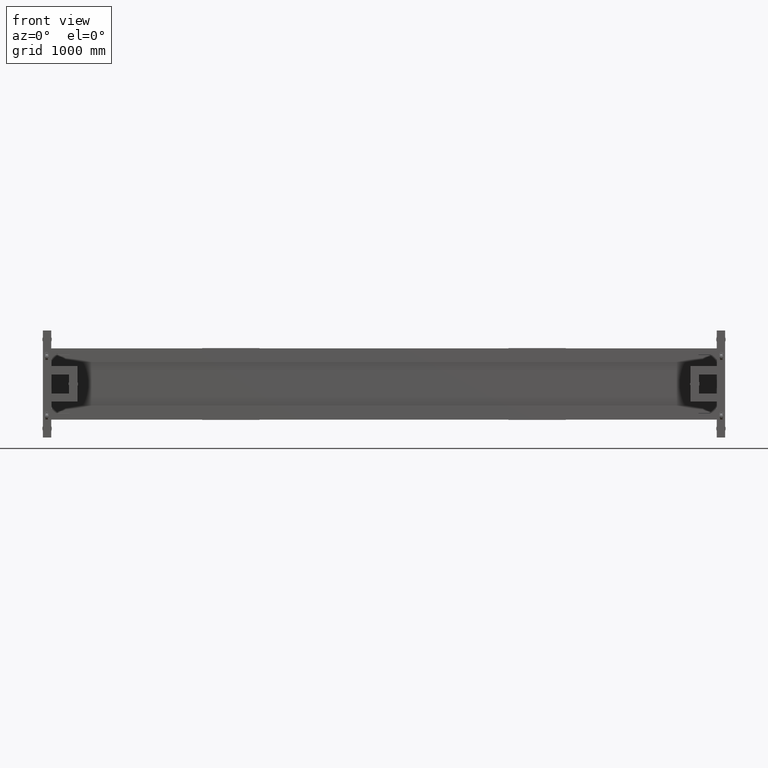
[diagram: clean part render]
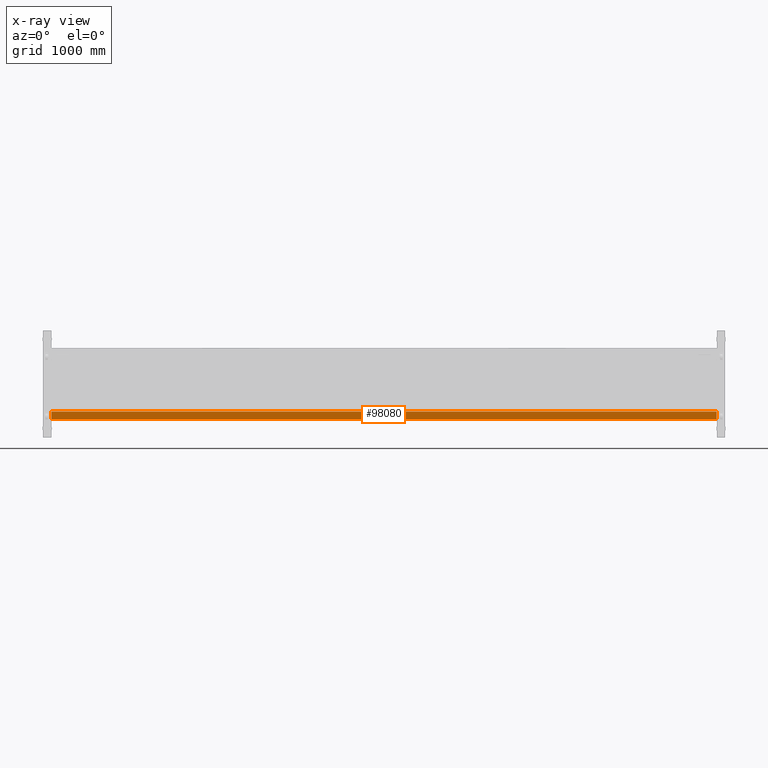
[diagram: x-ray — body ghosted, one internal face saturated and labeled with its STEP entity id]
A machine part, front view, then the same camera in x-ray: the body is ghosted and one INTERNAL B-rep face — a face not visible from any outside direction — is saturated and labeled: STEP entity #98080.
In plain terms, the highlighted planar face has unit normal (-0, -1, -0).
Its self-contained STEP definition (entity closure, byte-faithful):
#4790 = LINE ( 'NONE', #80050, #63642 ) ;
#9183 = DIRECTION ( 'NONE',  ( 0.000000000000000000, 2.999999999999999839E-15, -1.000000000000000000 ) ) ;
#15724 = DIRECTION ( 'NONE',  ( 1.000000000000000000, -1.365026013856678295E-16, 0.000000000000000000 ) ) ;
#15811 = ORIENTED_EDGE ( 'NONE', *, *, #82334, .T. ) ;
#20173 = LINE ( 'NONE', #57226, #66566 ) ;
#21780 = PLANE ( 'NONE',  #46987 ) ;
#24756 = DIRECTION ( 'NONE',  ( 4.095078041570034427E-31, 2.999999999999999839E-15, -1.000000000000000000 ) ) ;
#24801 = CARTESIAN_POINT ( 'NONE',  ( 4329.827512562815173, 554.4410804020131991, -232.4999999999999147 ) ) ;
#25346 = DIRECTION ( 'NONE',  ( -1.365026013856678295E-16, -1.000000000000000000, -2.999999999999999839E-15 ) ) ;
#29852 = VERTEX_POINT ( 'NONE', #24801 ) ;
#36593 = LINE ( 'NONE', #80834, #101250 ) ;
#38518 = DIRECTION ( 'NONE',  ( -9.534693476092635663E-31, 2.999999999999999839E-15, -1.000000000000000000 ) ) ;
#39582 = LINE ( 'NONE', #88576, #76273 ) ;
#46987 = AXIS2_PLACEMENT_3D ( 'NONE', #52695, #25346, #24756 ) ;
#52101 = FACE_OUTER_BOUND ( 'NONE', #113313, .T. ) ;
#52695 = CARTESIAN_POINT ( 'NONE',  ( 1133.827512562814718, 554.4410804020131991, -232.4999999999999147 ) ) ;
#57226 = CARTESIAN_POINT ( 'NONE',  ( 4329.827512562815173, 554.4410804020131991, -232.4999999999999147 ) ) ;
#62178 = EDGE_CURVE ( 'NONE', #77457, #96096, #4790, .T. ) ;
#63642 = VECTOR ( 'NONE', #15724, 1000.000000000000000 ) ;
#66566 = VECTOR ( 'NONE', #38518, 1000.000000000000000 ) ;
#67345 = DIRECTION ( 'NONE',  ( 1.000000000000000000, -1.365026013856678295E-16, 0.000000000000000000 ) ) ;
#71077 = EDGE_CURVE ( 'NONE', #29852, #96096, #20173, .T. ) ;
#72343 = VERTEX_POINT ( 'NONE', #74324 ) ;
#74324 = CARTESIAN_POINT ( 'NONE',  ( -1266.172487437185964, 554.4410804020122896, -232.4999999999999147 ) ) ;
#76273 = VECTOR ( 'NONE', #67345, 1000.000000000000000 ) ;
#77457 = VERTEX_POINT ( 'NONE', #90742 ) ;
#80050 = CARTESIAN_POINT ( 'NONE',  ( 1133.827512562814718, 554.4410804020134265, -297.4999999999999432 ) ) ;
#80834 = CARTESIAN_POINT ( 'NONE',  ( -1266.172487437185964, 554.4410804020122896, -232.4999999999999147 ) ) ;
#82334 = EDGE_CURVE ( 'NONE', #72343, #77457, #36593, .T. ) ;
#82483 = ORIENTED_EDGE ( 'NONE', *, *, #71077, .F. ) ;
#88576 = CARTESIAN_POINT ( 'NONE',  ( 1133.827512562814718, 554.4410804020131991, -232.4999999999999147 ) ) ;
#90742 = CARTESIAN_POINT ( 'NONE',  ( -1266.172487437185964, 554.4410804020125170, -297.4999999999999432 ) ) ;
#93306 = ORIENTED_EDGE ( 'NONE', *, *, #110256, .F. ) ;
#95142 = CARTESIAN_POINT ( 'NONE',  ( 4329.827512562815173, 554.4410804020134265, -297.4999999999999432 ) ) ;
#96096 = VERTEX_POINT ( 'NONE', #95142 ) ;
#97894 = ORIENTED_EDGE ( 'NONE', *, *, #62178, .T. ) ;
#98080 = ADVANCED_FACE ( 'NONE', ( #52101 ), #21780, .T. ) ;
#101250 = VECTOR ( 'NONE', #9183, 1000.000000000000000 ) ;
#110256 = EDGE_CURVE ( 'NONE', #72343, #29852, #39582, .T. ) ;
#113313 = EDGE_LOOP ( 'NONE', ( #93306, #15811, #97894, #82483 ) ) ;